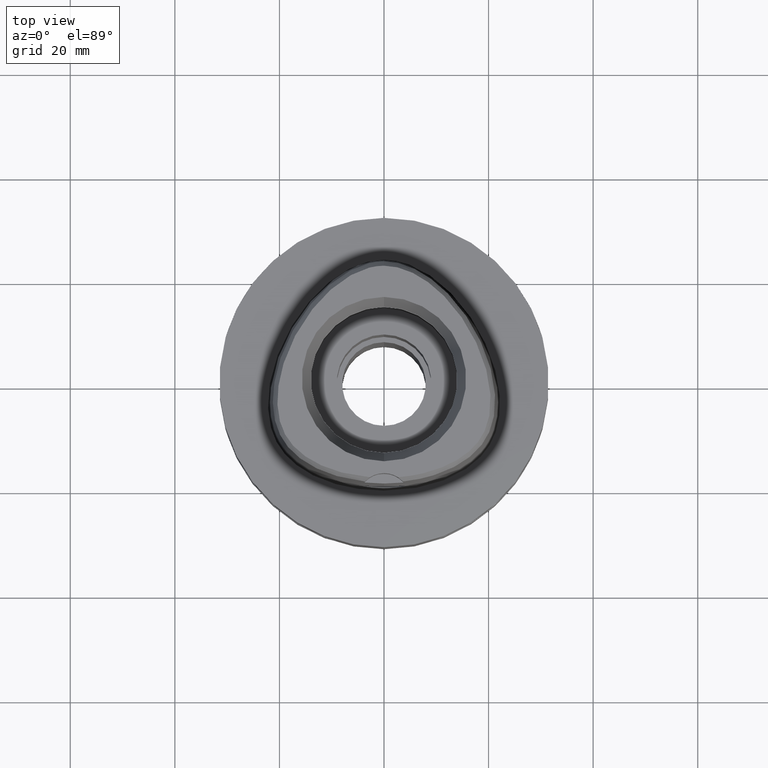
[diagram: clean part render]
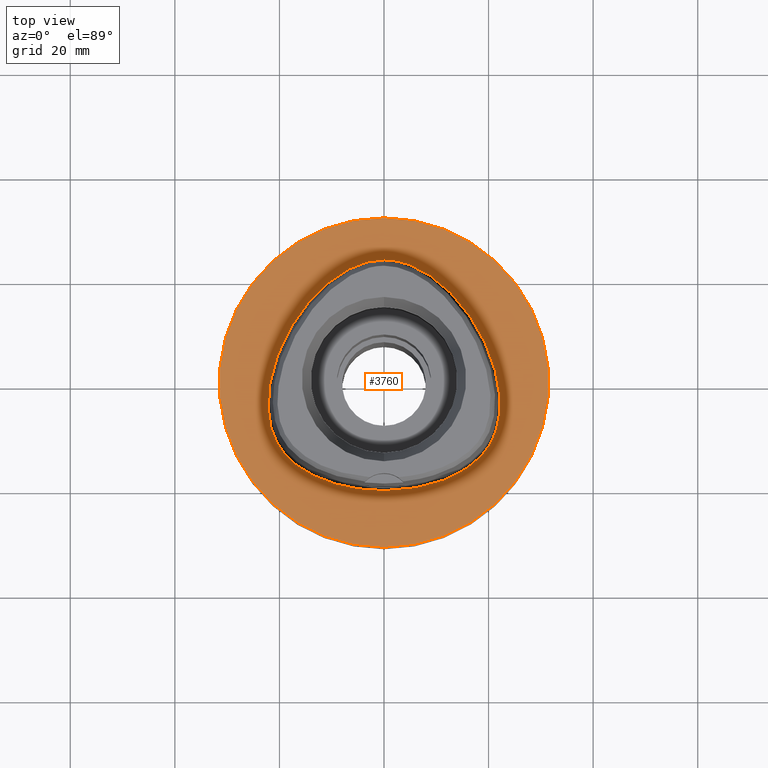
[diagram: same view with one face highlighted and labeled with its STEP entity id]
A machine part, top view. The second image highlights one B-rep face of the part: STEP entity #3760.
In plain terms, the highlighted planar face has unit normal (0, 0, -1).
Its self-contained STEP definition (entity closure, byte-faithful):
#297=CARTESIAN_POINT('',(0.E0,1.267509437118E-14,0.E0));
#298=DIRECTION('',(0.E0,0.E0,-1.E0));
#299=DIRECTION('',(0.E0,-1.E0,0.E0));
#300=AXIS2_PLACEMENT_3D('',#297,#298,#299);
#305=CARTESIAN_POINT('',(0.E0,1.267509437118E-14,0.E0));
#306=DIRECTION('',(0.E0,0.E0,-1.E0));
#307=DIRECTION('',(0.E0,1.E0,0.E0));
#308=AXIS2_PLACEMENT_3D('',#305,#306,#307);
#313=CARTESIAN_POINT('',(-1.227254752570E-11,-2.0675E1,1.465124318164E-13));
#314=CARTESIAN_POINT('',(8.905878814898E-1,-2.0675E1,1.465124318164E-13));
#315=CARTESIAN_POINT('',(2.643067267658E0,-2.060901440120E1,
-6.799665624374E-14));
#316=CARTESIAN_POINT('',(5.219940374427E0,-2.031877884932E1,
1.821964912853E-14));
#317=CARTESIAN_POINT('',(7.642262665924E0,-1.985692906844E1,0.E0));
#318=CARTESIAN_POINT('',(9.866475759696E0,-1.925196951355E1,0.E0));
#319=CARTESIAN_POINT('',(1.186463000980E1,-1.853435590357E1,0.E0));
#320=CARTESIAN_POINT('',(1.363017841297E1,-1.773279589206E1,0.E0));
#321=CARTESIAN_POINT('',(1.517152987623E1,-1.687053883030E1,0.E0));
#322=CARTESIAN_POINT('',(1.650458148566E1,-1.596536397262E1,0.E0));
#323=CARTESIAN_POINT('',(1.764922146196E1,-1.502921835177E1,0.E0));
#324=CARTESIAN_POINT('',(1.862603382731E1,-1.406850709111E1,0.E0));
#325=CARTESIAN_POINT('',(1.945128594675E1,-1.308844762963E1,0.E0));
#326=CARTESIAN_POINT('',(2.014345408501E1,-1.208696718694E1,0.E0));
#327=CARTESIAN_POINT('',(2.072443851313E1,-1.104066081845E1,0.E0));
#328=CARTESIAN_POINT('',(2.121602478538E1,-9.911010676035E0,0.E0));
#329=CARTESIAN_POINT('',(2.162291321151E1,-8.665389886597E0,0.E0));
#330=CARTESIAN_POINT('',(2.193248045627E1,-7.297070029713E0,0.E0));
#331=CARTESIAN_POINT('',(2.213244827860E1,-5.789459817994E0,0.E0));
#332=CARTESIAN_POINT('',(2.220492602712E1,-4.129729338654E0,0.E0));
#333=CARTESIAN_POINT('',(2.212843274304E1,-2.308154849447E0,0.E0));
#334=CARTESIAN_POINT('',(2.187886697738E1,-3.225904551415E-1,0.E0));
#335=CARTESIAN_POINT('',(2.143237974787E1,1.817418805768E0,0.E0));
#336=CARTESIAN_POINT('',(2.076958435802E1,4.086254559665E0,0.E0));
#337=CARTESIAN_POINT('',(1.988145372027E1,6.438494080113E0,0.E0));
#338=CARTESIAN_POINT('',(1.877439841040E1,8.810810785771E0,0.E0));
#339=CARTESIAN_POINT('',(1.747414574254E1,1.112716587768E1,0.E0));
#340=CARTESIAN_POINT('',(1.601484889013E1,1.332410693113E1,0.E0));
#341=CARTESIAN_POINT('',(1.444584503406E1,1.533903946180E1,0.E0));
#342=CARTESIAN_POINT('',(1.282043108483E1,1.712647641117E1,0.E0));
#343=CARTESIAN_POINT('',(1.118570926637E1,1.866452585121E1,0.E0));
#344=CARTESIAN_POINT('',(9.577136652453E0,1.995214927072E1,0.E0));
#345=CARTESIAN_POINT('',(8.018939282299E0,2.100177074381E1,0.E0));
#346=CARTESIAN_POINT('',(6.523847285884E0,2.183425401411E1,0.E0));
#347=CARTESIAN_POINT('',(5.096415196867E0,2.247290869945E1,0.E0));
#348=CARTESIAN_POINT('',(3.735578118854E0,2.294026979045E1,0.E0));
#349=CARTESIAN_POINT('',(2.435931358877E0,2.325618223258E1,1.785608452101E-14));
#350=CARTESIAN_POINT('',(1.192384925126E0,2.343666616188E1,
-6.663981465665E-14));
#351=CARTESIAN_POINT('',(3.921824268870E-1,2.347499999999E1,
1.435888445182E-13));
#352=CARTESIAN_POINT('',(6.174329104421E-11,2.347499999999E1,
1.435888445182E-13));
#357=CARTESIAN_POINT('',(6.174329104421E-11,2.347499999999E1,
1.435888445182E-13));
#358=CARTESIAN_POINT('',(-3.922185481802E-1,2.347499999999E1,
1.435888445182E-13));
#359=CARTESIAN_POINT('',(-1.192452828064E0,2.343666339267E1,
-6.663981465665E-14));
#360=CARTESIAN_POINT('',(-2.436071162062E0,2.325614985921E1,
1.785608452101E-14));
#361=CARTESIAN_POINT('',(-3.735376992559E0,2.294031892303E1,0.E0));
#362=CARTESIAN_POINT('',(-5.096074325782E0,2.247304060645E1,0.E0));
#363=CARTESIAN_POINT('',(-6.523433194313E0,2.183446209713E1,0.E0));
#364=CARTESIAN_POINT('',(-8.018601373883E0,2.100198192708E1,0.E0));
#365=CARTESIAN_POINT('',(-9.576863589983E0,1.995235315798E1,0.E0));
#366=CARTESIAN_POINT('',(-1.118551840690E1,1.866469546749E1,0.E0));
#367=CARTESIAN_POINT('',(-1.282027443415E1,1.712663354368E1,0.E0));
#368=CARTESIAN_POINT('',(-1.444566204824E1,1.533926177815E1,0.E0));
#369=CARTESIAN_POINT('',(-1.601468534716E1,1.332431286467E1,0.E0));
#370=CARTESIAN_POINT('',(-1.747357028946E1,1.112808449198E1,0.E0));
#371=CARTESIAN_POINT('',(-1.877388213298E1,8.811806806083E0,0.E0));
#372=CARTESIAN_POINT('',(-1.988080453253E1,6.439998330068E0,0.E0));
#373=CARTESIAN_POINT('',(-2.076892223707E1,4.088180826554E0,0.E0));
#374=CARTESIAN_POINT('',(-2.143168150409E1,1.820114675266E0,0.E0));
#375=CARTESIAN_POINT('',(-2.187831118513E1,-3.193610771652E-1,0.E0));
#376=CARTESIAN_POINT('',(-2.212810764879E1,-2.304531911325E0,0.E0));
#377=CARTESIAN_POINT('',(-2.220492294391E1,-4.125759347829E0,0.E0));
#378=CARTESIAN_POINT('',(-2.213275692383E1,-5.785749221796E0,0.E0));
#379=CARTESIAN_POINT('',(-2.193320056457E1,-7.293164531941E0,0.E0));
#380=CARTESIAN_POINT('',(-2.162363502782E1,-8.662637077279E0,0.E0));
#381=CARTESIAN_POINT('',(-2.121772291412E1,-9.906556593905E0,0.E0));
#382=CARTESIAN_POINT('',(-2.072511665148E1,-1.103957141404E1,0.E0));
#383=CARTESIAN_POINT('',(-2.014310543114E1,-1.208753462180E1,0.E0));
#384=CARTESIAN_POINT('',(-1.945146109793E1,-1.308813764943E1,0.E0));
#385=CARTESIAN_POINT('',(-1.862700455851E1,-1.406745191856E1,0.E0));
#386=CARTESIAN_POINT('',(-1.765013258891E1,-1.502839690312E1,0.E0));
#387=CARTESIAN_POINT('',(-1.650610752406E1,-1.596421345287E1,0.E0));
#388=CARTESIAN_POINT('',(-1.517311799540E1,-1.686956787633E1,0.E0));
#389=CARTESIAN_POINT('',(-1.363179589720E1,-1.773199057028E1,0.E0));
#390=CARTESIAN_POINT('',(-1.186586290719E1,-1.853387300556E1,0.E0));
#391=CARTESIAN_POINT('',(-9.867372074733E0,-1.925170087602E1,0.E0));
#392=CARTESIAN_POINT('',(-7.642658549412E0,-1.985685307720E1,0.E0));
#393=CARTESIAN_POINT('',(-5.219916498495E0,-2.031878763544E1,
1.821964912853E-14));
#394=CARTESIAN_POINT('',(-2.643022211903E0,-2.060901680519E1,
-6.799665624374E-14));
#395=CARTESIAN_POINT('',(-8.905551568325E-1,-2.0675E1,1.465124318164E-13));
#396=CARTESIAN_POINT('',(-1.227254752570E-11,-2.0675E1,1.465124318164E-13));
#2758=VERTEX_POINT('',#357);
#2759=VERTEX_POINT('',#396);
#2764=CARTESIAN_POINT('',(0.E0,-3.15E1,0.E0));
#2765=CARTESIAN_POINT('',(0.E0,3.15E1,0.E0));
#2766=VERTEX_POINT('',#2764);
#2767=VERTEX_POINT('',#2765);
#3744=CARTESIAN_POINT('',(0.E0,1.224646799147E-14,0.E0));
#3745=DIRECTION('',(0.E0,0.E0,-1.E0));
#3746=DIRECTION('',(0.E0,-1.E0,0.E0));
#3747=AXIS2_PLACEMENT_3D('',#3744,#3745,#3746);
#3748=PLANE('',#3747);
#3750=ORIENTED_EDGE('',*,*,#3749,.T.);
#3752=ORIENTED_EDGE('',*,*,#3751,.T.);
#3753=EDGE_LOOP('',(#3750,#3752));
#3754=FACE_OUTER_BOUND('',#3753,.F.);
#3756=ORIENTED_EDGE('',*,*,#3755,.T.);
#3757=ORIENTED_EDGE('',*,*,#3727,.T.);
#3758=EDGE_LOOP('',(#3756,#3757));
#3759=FACE_BOUND('',#3758,.F.);
#301=CIRCLE('',#300,3.15E1);
#309=CIRCLE('',#308,3.15E1);
#353=B_SPLINE_CURVE_WITH_KNOTS('',3,(#313,#314,#315,#316,#317,#318,#319,#320,
#321,#322,#323,#324,#325,#326,#327,#328,#329,#330,#331,#332,#333,#334,#335,#336,
#337,#338,#339,#340,#341,#342,#343,#344,#345,#346,#347,#348,#349,#350,#351,
#352),.UNSPECIFIED.,.F.,.F.,(4,1,1,1,1,1,1,1,1,1,1,1,1,1,1,1,1,1,1,1,1,1,1,1,1,
1,1,1,1,1,1,1,1,1,1,1,1,4),(0.E0,2.702702702703E-2,5.405405405405E-2,
8.108108108108E-2,1.081081081081E-1,1.351351351351E-1,1.621621621622E-1,
1.891891891892E-1,2.162162162162E-1,2.432432432432E-1,2.702702702703E-1,
2.972972972973E-1,3.243243243243E-1,3.513513513514E-1,3.783783783784E-1,
4.054054054054E-1,4.324324324324E-1,4.594594594595E-1,4.864864864865E-1,
5.135135135135E-1,5.405405405405E-1,5.675675675676E-1,5.945945945946E-1,
6.216216216216E-1,6.486486486486E-1,6.756756756757E-1,7.027027027027E-1,
7.297297297297E-1,7.567567567568E-1,7.837837837838E-1,8.108108108108E-1,
8.378378378378E-1,8.648648648649E-1,8.918918918919E-1,9.189189189189E-1,
9.459459459459E-1,9.729729729730E-1,1.E0),.UNSPECIFIED.);
#397=B_SPLINE_CURVE_WITH_KNOTS('',3,(#357,#358,#359,#360,#361,#362,#363,#364,
#365,#366,#367,#368,#369,#370,#371,#372,#373,#374,#375,#376,#377,#378,#379,#380,
#381,#382,#383,#384,#385,#386,#387,#388,#389,#390,#391,#392,#393,#394,#395,
#396),.UNSPECIFIED.,.F.,.F.,(4,1,1,1,1,1,1,1,1,1,1,1,1,1,1,1,1,1,1,1,1,1,1,1,1,
1,1,1,1,1,1,1,1,1,1,1,1,4),(0.E0,2.702702702703E-2,5.405405405405E-2,
8.108108108108E-2,1.081081081081E-1,1.351351351351E-1,1.621621621622E-1,
1.891891891892E-1,2.162162162162E-1,2.432432432432E-1,2.702702702703E-1,
2.972972972973E-1,3.243243243243E-1,3.513513513514E-1,3.783783783784E-1,
4.054054054054E-1,4.324324324324E-1,4.594594594595E-1,4.864864864865E-1,
5.135135135135E-1,5.405405405405E-1,5.675675675676E-1,5.945945945946E-1,
6.216216216216E-1,6.486486486486E-1,6.756756756757E-1,7.027027027027E-1,
7.297297297297E-1,7.567567567568E-1,7.837837837838E-1,8.108108108108E-1,
8.378378378378E-1,8.648648648649E-1,8.918918918919E-1,9.189189189189E-1,
9.459459459459E-1,9.729729729730E-1,1.E0),.UNSPECIFIED.);
#3727=EDGE_CURVE('',#2758,#2759,#397,.T.);
#3749=EDGE_CURVE('',#2766,#2767,#301,.T.);
#3751=EDGE_CURVE('',#2767,#2766,#309,.T.);
#3755=EDGE_CURVE('',#2759,#2758,#353,.T.);
#3760=ADVANCED_FACE('',(#3754,#3759),#3748,.F.);